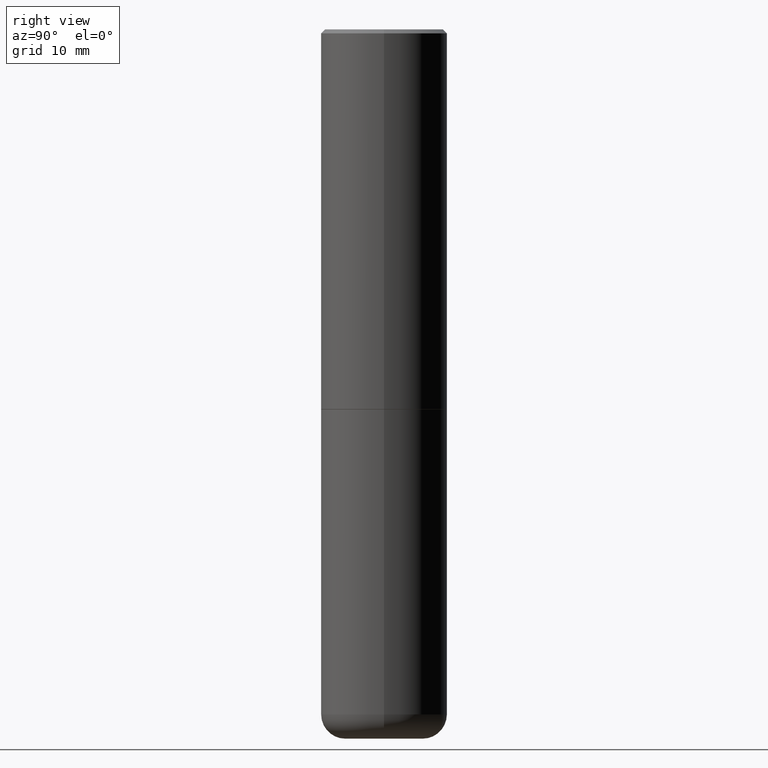
[diagram: clean part render]
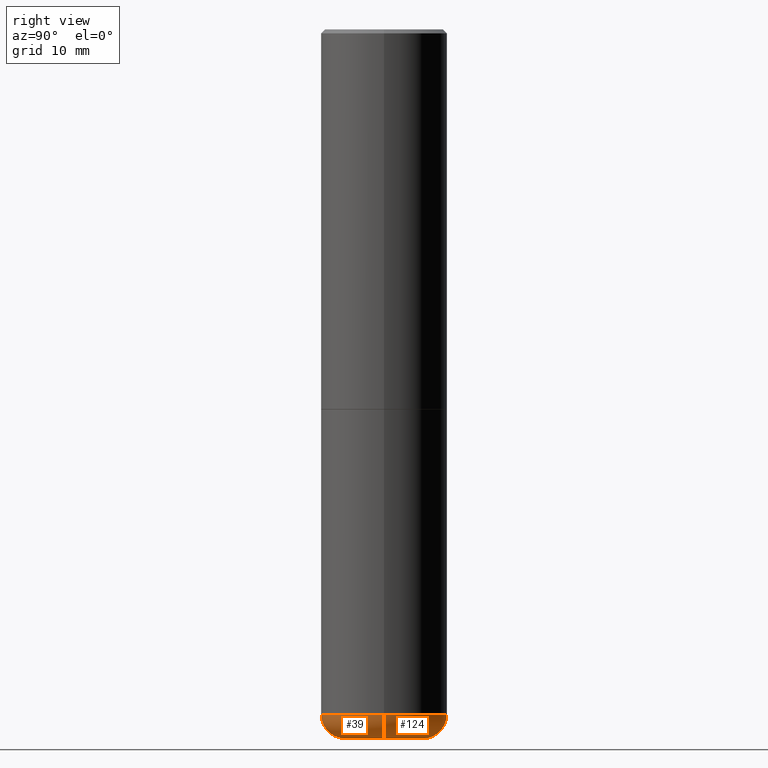
[diagram: same view with one multi-face feature highlighted, each face labeled with its STEP entity id]
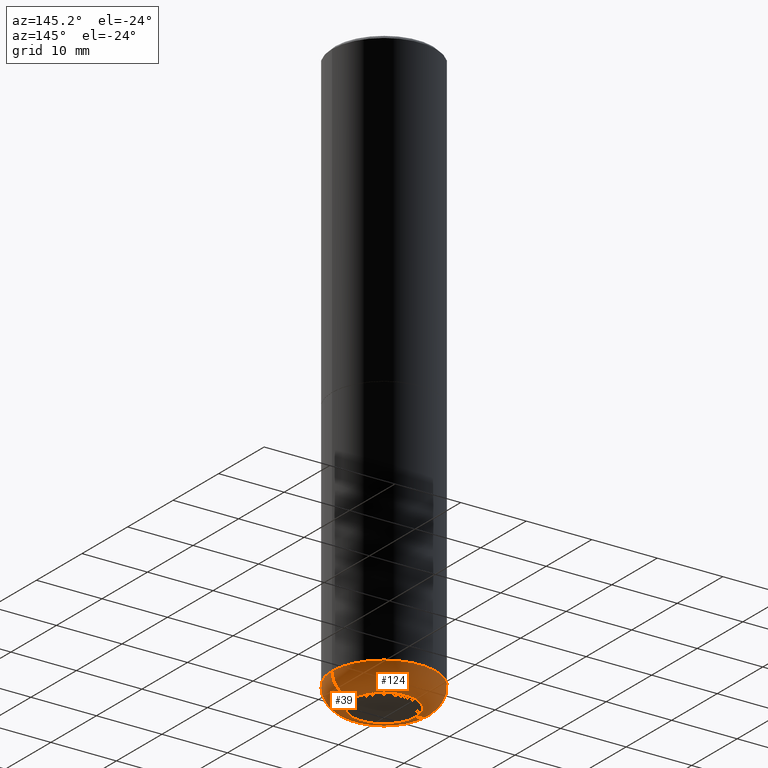
[diagram: same view with one multi-face feature highlighted, each face labeled with its STEP entity id]
A machine part, right view. The highlighted faces form ONE feature: a constant-radius fillet chain: 2 tangent blend faces with common blend radius 3.048 mm. The faces share edges in the B-rep.
A second angle (auxiliary view) of the same feature is appended — it is thin or edge-on in the first view.
Their STEP definitions:
[1] entity #39 (Torus):
#13 = AXIS2_PLACEMENT_3D ( 'NONE', #329, #177, #69 ) ;
#25 = AXIS2_PLACEMENT_3D ( 'NONE', #464, #313, #238 ) ;
#34 = CARTESIAN_POINT ( 'NONE',  ( 0.3125000000000000000, -1.398339871545609435E-14, -3.380004569232299083 ) ) ;
#39 = ADVANCED_FACE ( 'NONE', ( #445 ), #142, .T. ) ;
#49 = ORIENTED_EDGE ( 'NONE', *, *, #450, .T. ) ;
#51 = AXIS2_PLACEMENT_3D ( 'NONE', #366, #406, #381 ) ;
#63 = CIRCLE ( 'NONE', #25, 0.3125000000000000000 ) ;
#69 = DIRECTION ( 'NONE',  ( 1.000000000000000000, -6.982962677686266711E-15, 0.000000000000000000 ) ) ;
#84 = ORIENTED_EDGE ( 'NONE', *, *, #284, .F. ) ;
#85 = AXIS2_PLACEMENT_3D ( 'NONE', #441, #370, #257 ) ;
#97 = VERTEX_POINT ( 'NONE', #421 ) ;
#142 = TOROIDAL_SURFACE ( 'NONE', #51, 0.1925000000000002820, 0.1200000000000000233 ) ;
#154 = VERTEX_POINT ( 'NONE', #403 ) ;
#156 = EDGE_CURVE ( 'NONE', #154, #97, #269, .T. ) ;
#177 = DIRECTION ( 'NONE',  ( -6.982962677686266711E-15, -1.000000000000000000, 3.491481338843145583E-15 ) ) ;
#198 = CARTESIAN_POINT ( 'NONE',  ( -0.1925000000000002820, -1.043342811234094233E-14, -3.380004569232299083 ) ) ;
#238 = DIRECTION ( 'NONE',  ( 1.000000000000000000, -6.982962677686269077E-15, 0.000000000000000000 ) ) ;
#257 = DIRECTION ( 'NONE',  ( 1.000000000000000000, -6.982962677686268288E-15, 0.000000000000000000 ) ) ;
#269 = CIRCLE ( 'NONE', #407, 0.1200000000000000233 ) ;
#284 = EDGE_CURVE ( 'NONE', #97, #411, #63, .T. ) ;
#287 = CIRCLE ( 'NONE', #13, 0.1200000000000000233 ) ;
#292 = CARTESIAN_POINT ( 'NONE',  ( 0.1914528157401960695, -1.355709255280274145E-14, -3.499999999999999112 ) ) ;
#304 = ORIENTED_EDGE ( 'NONE', *, *, #156, .F. ) ;
#308 = DIRECTION ( 'NONE',  ( -1.000000000000000000, 7.105427357601006592E-15, 0.000000000000000000 ) ) ;
#313 = DIRECTION ( 'NONE',  ( -2.445468806185136597E-29, 3.491481338843145583E-15, 1.000000000000000000 ) ) ;
#329 = CARTESIAN_POINT ( 'NONE',  ( 0.1925000000000002820, -1.314544319413374424E-14, -3.380004569232299083 ) ) ;
#366 = CARTESIAN_POINT ( 'NONE',  ( 8.265695738820817389E-29, -1.180122287867913601E-14, -3.380004569232299083 ) ) ;
#370 = DIRECTION ( 'NONE',  ( -2.445468806185136597E-29, 3.491481338843145583E-15, 1.000000000000000000 ) ) ;
#381 = DIRECTION ( 'NONE',  ( 1.000000000000000000, -6.982962677686269077E-15, 4.883557194083113462E-29 ) ) ;
#395 = CIRCLE ( 'NONE', #85, 0.1914528157401960695 ) ;
#403 = CARTESIAN_POINT ( 'NONE',  ( -0.1914528157401960695, -1.022030372036484833E-14, -3.499999999999999112 ) ) ;
#406 = DIRECTION ( 'NONE',  ( -2.445468806185136597E-29, 3.491481338843145583E-15, 1.000000000000000000 ) ) ;
#407 = AXIS2_PLACEMENT_3D ( 'NONE', #198, #409, #308 ) ;
#409 = DIRECTION ( 'NONE',  ( 7.105427357601001859E-15, 1.000000000000000000, -3.491481338843145583E-15 ) ) ;
#411 = VERTEX_POINT ( 'NONE', #34 ) ;
#421 = CARTESIAN_POINT ( 'NONE',  ( -0.3125000000000000000, -6.953429145254701909E-15, -3.380004569232299083 ) ) ;
#441 = CARTESIAN_POINT ( 'NONE',  ( 8.559140821647976968E-29, -1.222018468595100619E-14, -3.499999999999999112 ) ) ;
#445 = FACE_OUTER_BOUND ( 'NONE', #472, .T. ) ;
#450 = EDGE_CURVE ( 'NONE', #154, #468, #395, .T. ) ;
#456 = EDGE_CURVE ( 'NONE', #468, #411, #287, .T. ) ;
#464 = CARTESIAN_POINT ( 'NONE',  ( 8.265695738820817389E-29, -1.180122287867913601E-14, -3.380004569232299083 ) ) ;
#465 = ORIENTED_EDGE ( 'NONE', *, *, #456, .T. ) ;
#468 = VERTEX_POINT ( 'NONE', #292 ) ;
#472 = EDGE_LOOP ( 'NONE', ( #304, #49, #465, #84 ) ) ;
[2] entity #124 (Torus):
#13 = AXIS2_PLACEMENT_3D ( 'NONE', #329, #177, #69 ) ;
#21 = AXIS2_PLACEMENT_3D ( 'NONE', #186, #336, #349 ) ;
#27 = DIRECTION ( 'NONE',  ( 1.000000000000000000, -6.982962677686268288E-15, 0.000000000000000000 ) ) ;
#34 = CARTESIAN_POINT ( 'NONE',  ( 0.3125000000000000000, -1.398339871545609435E-14, -3.380004569232299083 ) ) ;
#69 = DIRECTION ( 'NONE',  ( 1.000000000000000000, -6.982962677686266711E-15, 0.000000000000000000 ) ) ;
#71 = CIRCLE ( 'NONE', #208, 0.3125000000000000000 ) ;
#97 = VERTEX_POINT ( 'NONE', #421 ) ;
#115 = ORIENTED_EDGE ( 'NONE', *, *, #156, .T. ) ;
#124 = ADVANCED_FACE ( 'NONE', ( #489 ), #136, .T. ) ;
#136 = TOROIDAL_SURFACE ( 'NONE', #21, 0.1925000000000002820, 0.1200000000000000233 ) ;
#154 = VERTEX_POINT ( 'NONE', #403 ) ;
#156 = EDGE_CURVE ( 'NONE', #154, #97, #269, .T. ) ;
#168 = ORIENTED_EDGE ( 'NONE', *, *, #428, .F. ) ;
#175 = ORIENTED_EDGE ( 'NONE', *, *, #456, .F. ) ;
#177 = DIRECTION ( 'NONE',  ( -6.982962677686266711E-15, -1.000000000000000000, 3.491481338843145583E-15 ) ) ;
#179 = DIRECTION ( 'NONE',  ( -2.445468806185136597E-29, 3.491481338843145583E-15, 1.000000000000000000 ) ) ;
#186 = CARTESIAN_POINT ( 'NONE',  ( 8.265695738820817389E-29, -1.180122287867913601E-14, -3.380004569232299083 ) ) ;
#198 = CARTESIAN_POINT ( 'NONE',  ( -0.1925000000000002820, -1.043342811234094233E-14, -3.380004569232299083 ) ) ;
#202 = AXIS2_PLACEMENT_3D ( 'NONE', #483, #179, #27 ) ;
#208 = AXIS2_PLACEMENT_3D ( 'NONE', #375, #334, #216 ) ;
#216 = DIRECTION ( 'NONE',  ( 1.000000000000000000, -6.982962677686269077E-15, 0.000000000000000000 ) ) ;
#269 = CIRCLE ( 'NONE', #407, 0.1200000000000000233 ) ;
#287 = CIRCLE ( 'NONE', #13, 0.1200000000000000233 ) ;
#292 = CARTESIAN_POINT ( 'NONE',  ( 0.1914528157401960695, -1.355709255280274145E-14, -3.499999999999999112 ) ) ;
#296 = ORIENTED_EDGE ( 'NONE', *, *, #423, .T. ) ;
#308 = DIRECTION ( 'NONE',  ( -1.000000000000000000, 7.105427357601006592E-15, 0.000000000000000000 ) ) ;
#309 = CIRCLE ( 'NONE', #202, 0.1914528157401960695 ) ;
#329 = CARTESIAN_POINT ( 'NONE',  ( 0.1925000000000002820, -1.314544319413374424E-14, -3.380004569232299083 ) ) ;
#334 = DIRECTION ( 'NONE',  ( -2.445468806185136597E-29, 3.491481338843145583E-15, 1.000000000000000000 ) ) ;
#336 = DIRECTION ( 'NONE',  ( -2.445468806185136597E-29, 3.491481338843145583E-15, 1.000000000000000000 ) ) ;
#349 = DIRECTION ( 'NONE',  ( 1.000000000000000000, -6.982962677686269077E-15, 4.883557194083113462E-29 ) ) ;
#361 = EDGE_LOOP ( 'NONE', ( #296, #115, #168, #175 ) ) ;
#375 = CARTESIAN_POINT ( 'NONE',  ( 8.265695738820817389E-29, -1.180122287867913601E-14, -3.380004569232299083 ) ) ;
#403 = CARTESIAN_POINT ( 'NONE',  ( -0.1914528157401960695, -1.022030372036484833E-14, -3.499999999999999112 ) ) ;
#407 = AXIS2_PLACEMENT_3D ( 'NONE', #198, #409, #308 ) ;
#409 = DIRECTION ( 'NONE',  ( 7.105427357601001859E-15, 1.000000000000000000, -3.491481338843145583E-15 ) ) ;
#411 = VERTEX_POINT ( 'NONE', #34 ) ;
#421 = CARTESIAN_POINT ( 'NONE',  ( -0.3125000000000000000, -6.953429145254701909E-15, -3.380004569232299083 ) ) ;
#423 = EDGE_CURVE ( 'NONE', #468, #154, #309, .T. ) ;
#428 = EDGE_CURVE ( 'NONE', #411, #97, #71, .T. ) ;
#456 = EDGE_CURVE ( 'NONE', #468, #411, #287, .T. ) ;
#468 = VERTEX_POINT ( 'NONE', #292 ) ;
#483 = CARTESIAN_POINT ( 'NONE',  ( 8.559140821647976968E-29, -1.222018468595100619E-14, -3.499999999999999112 ) ) ;
#489 = FACE_OUTER_BOUND ( 'NONE', #361, .T. ) ;